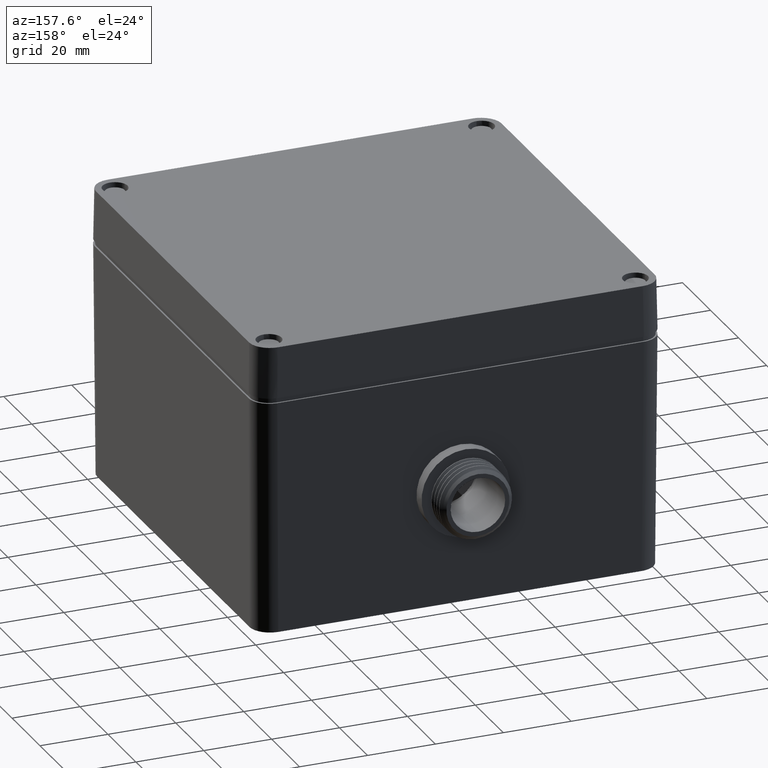
[diagram: clean part render]
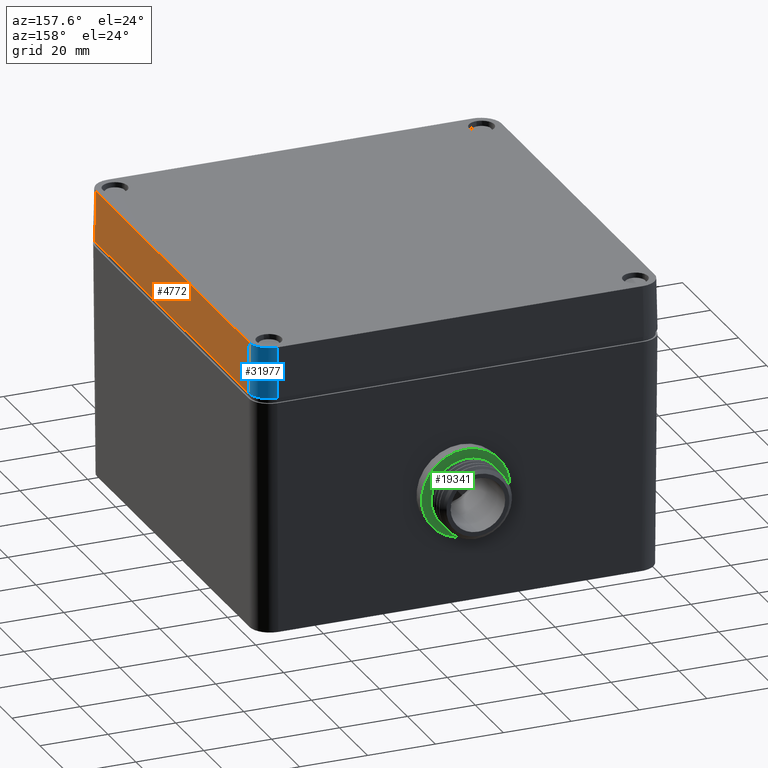
[diagram: same view with three faces highlighted in distinct colors, each labeled with its STEP entity id]
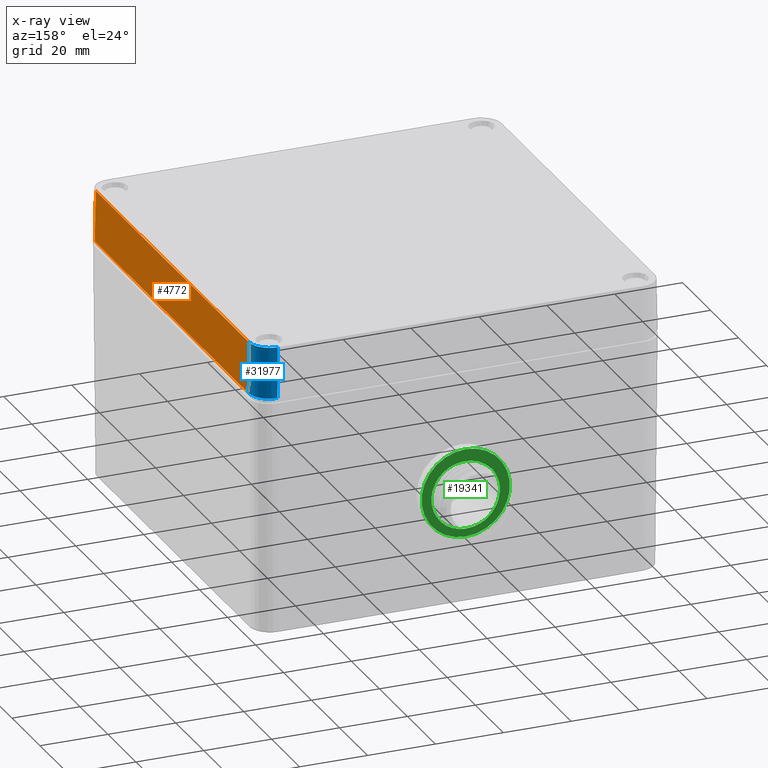
[diagram: x-ray of the same camera — body ghosted, the three highlighted faces saturated]
A machine part, auxiliary view with three faces highlighted in distinct colors.
The next image is the same camera in x-ray (body ghosted, the three faces saturated) — at least one of them is partly hidden behind the body in this view.
Their STEP definitions:

[orange] entity #4772 — the highlighted planar face has unit normal (0.9998, -0, 0.0175).
#57 = VERTEX_POINT ( 'NONE', #34297 ) ;
#141 = CARTESIAN_POINT ( 'NONE',  ( 2.355251277998998027, 2.158480694786887089, 0.3983624452186086407 ) ) ;
#1063 = CARTESIAN_POINT ( 'NONE',  ( 2.353181742042490754, -2.156368528094980697, 0.5169263135951186472 ) ) ;
#1912 = CARTESIAN_POINT ( 'NONE',  ( 2.362204724409393997, -2.165390308230775496, -6.043589989673345379E-16 ) ) ;
#2088 = CARTESIAN_POINT ( 'NONE',  ( 2.352841487991889302, 2.156192830683442363, 0.5364166382341853945 ) ) ;
#2254 = CARTESIAN_POINT ( 'NONE',  ( 2.353033918635437427, 2.156305534808684143, 0.5253942857674601674 ) ) ;
#2426 = CARTESIAN_POINT ( 'NONE',  ( 2.357050419131374586, -2.160235688940909338, 0.2952899516111358591 ) ) ;
#2706 = CARTESIAN_POINT ( 'NONE',  ( 2.362204724409397549, -2.598468369876929085, -5.463695987328527423E-16 ) ) ;
#2771 = CARTESIAN_POINT ( 'NONE',  ( 2.352564339387673620, 2.156108989803171117, 0.5522816826365337661 ) ) ;
#2864 = ORIENTED_EDGE ( 'NONE', *, *, #19145, .T. ) ;
#3635 = EDGE_CURVE ( 'NONE', #57, #6477, #9362, .T. ) ;
#3661 = CARTESIAN_POINT ( 'NONE',  ( 2.359383643705834643, 2.162569227527201043, 0.1616196052651092119 ) ) ;
#3708 = CARTESIAN_POINT ( 'NONE',  ( 2.353051709898592136, -2.156295069092335481, 0.5243758501298152463 ) ) ;
#4239 = CARTESIAN_POINT ( 'NONE',  ( 2.362204724409405543, 2.165390308230775496, -3.750340947889106375E-16 ) ) ;
#4772 = ADVANCED_FACE ( 'NONE', ( #5075 ), #12462, .T. ) ;
#4884 = CARTESIAN_POINT ( 'NONE',  ( 2.353180967361492293, 2.156409278470588831, 0.5169704762042724999 ) ) ;
#5075 = FACE_OUTER_BOUND ( 'NONE', #20816, .T. ) ;
#5229 = CARTESIAN_POINT ( 'NONE',  ( 2.352334635223743753, 2.156097020427234057, 0.5654187720685159846 ) ) ;
#6477 = VERTEX_POINT ( 'NONE', #34365 ) ;
#7011 = CARTESIAN_POINT ( 'NONE',  ( 2.352557804642128936, -2.156127391509974789, 0.5526716633218149433 ) ) ;
#7025 = CARTESIAN_POINT ( 'NONE',  ( 2.350865797016137737, -2.598468369876929085, 0.6496067152937756717 ) ) ;
#7054 = VECTOR ( 'NONE', #32856, 39.37007874015748143 ) ;
#7180 = CARTESIAN_POINT ( 'NONE',  ( 2.357016010137087392, -2.160202791623577312, 0.2972612415736117786 ) ) ;
#7506 = CARTESIAN_POINT ( 'NONE',  ( 2.352576141529553411, 2.156110948648593428, 0.5516063790416798618 ) ) ;
#7508 = CARTESIAN_POINT ( 'NONE',  ( 2.357738676050488813, -2.160893545960031137, 0.2558597391230127416 ) ) ;
#7804 = EDGE_CURVE ( 'NONE', #6477, #16788, #9403, .T. ) ;
#7859 = CARTESIAN_POINT ( 'NONE',  ( 2.354514351323819810, 2.157728896057717893, 0.4405810773966952754 ) ) ;
#7861 = CARTESIAN_POINT ( 'NONE',  ( 2.354439362616060016, -2.157619672768677166, 0.4448772791892376954 ) ) ;
#8032 = CARTESIAN_POINT ( 'NONE',  ( 2.353223411596077064, 2.156441946459593417, 0.5145389348610035496 ) ) ;
#8037 = ORIENTED_EDGE ( 'NONE', *, *, #22604, .T. ) ;
#8212 = CARTESIAN_POINT ( 'NONE',  ( 2.355554434297991939, 2.158780559679268851, 0.3809946661121992317 ) ) ;
#8742 = CARTESIAN_POINT ( 'NONE',  ( 2.355661275333182925, 2.158885724765175151, 0.3748737633946719883 ) ) ;
#8923 = CARTESIAN_POINT ( 'NONE',  ( 2.355661795932999514, 2.158886236603755560, 0.3748439383335794850 ) ) ;
#8960 = CARTESIAN_POINT ( 'NONE',  ( 2.353167137115640184, -2.156359382779720502, 0.5177630292939875423 ) ) ;
#9362 = LINE ( 'NONE', #9530, #7054 ) ;
#9403 = B_SPLINE_CURVE_WITH_KNOTS ( 'NONE', 3,
 ( #13300, #26789, #5229, #23825, #15755, #2771, #13127, #20842, #21539, #26273, #7506, #23993, #2088, #2254, #10495, #4884, #18917, #10671, #8032, #31526, #12967, #23657, #18730, #21187, #31876, #18199, #13475, #7859, #10160, #21367, #18553, #16272, #15922, #10324, #24169, #141, #21012, #8212, #10845, #32237, #29603, #12793, #31700, #23486, #8923, #8742, #29778, #3661, #11378 ),
 .UNSPECIFIED., .F., .F.,
 ( 4, 1, 1, 1, 1, 1, 1, 2, 2, 1, 1, 1, 1, 1, 1, 2, 2, 1, 1, 1, 1, 1, 1, 1, 1, 2, 2, 1, 1, 1, 1, 1, 1, 1, 1, 1, 2, 2, 4 ),
 ( 0.000000000000000000, 0.06249999999999440725, 0.09374999999999163169, 0.1093749999999907990, 0.1171874999999896333, 0.1210937499999891337, 0.1230468749999901884, 0.1240234374999905909, 0.1249999999999910072, 0.1875000000000039135, 0.2187500000000104083, 0.2343750000000132949, 0.2421875000000144051, 0.2460937500000150158, 0.2480468750000156264, 0.2490234375000159595, 0.2500000000000163203, 0.3750000000001817435, 0.4375000000002648437, 0.4687500000003060885, 0.4843750000003267386, 0.4921875000003371192, 0.4960937500003424483, 0.4980468750003451683, 0.4990234375003465561, 0.4995117187503470557, 0.5000000000003474998, 0.6250000000002307043, 0.6875000000001719735, 0.7187500000001425526, 0.7343750000001277867, 0.7421875000001204592, 0.7460937500001167955, 0.7480468750001149081, 0.7490234375001142419, 0.7495117187501142419, 0.7497558593751142419, 0.7500000000001141309, 1.000000000000000000 ),
 .UNSPECIFIED. ) ;
#9530 = CARTESIAN_POINT ( 'NONE',  ( 2.351896615199823071, 2.869518138128106521, 0.5905511811023621549 ) ) ;
#9647 = CARTESIAN_POINT ( 'NONE',  ( 2.352182386997454522, -2.156091088310620574, 0.5741793257807199513 ) ) ;
#9990 = CARTESIAN_POINT ( 'NONE',  ( 2.354456524076193435, -2.157638988890552945, 0.4438940997966681068 ) ) ;
#10160 = CARTESIAN_POINT ( 'NONE',  ( 2.354533109404270519, 2.157748716654744214, 0.4395064200328482884 ) ) ;
#10162 = CARTESIAN_POINT ( 'NONE',  ( 2.354468835662260062, -2.157652860836984043, 0.4431887695032579177 ) ) ;
#10324 = CARTESIAN_POINT ( 'NONE',  ( 2.354670429741324789, 2.157893929226902152, 0.4316392838003073051 ) ) ;
#10327 = CARTESIAN_POINT ( 'NONE',  ( 2.354208203435512736, -2.157361981356422209, 0.4581203797733690575 ) ) ;
#10495 = CARTESIAN_POINT ( 'NONE',  ( 2.353131691073817588, 2.156372867195542220, 0.5197933694044224451 ) ) ;
#10671 = CARTESIAN_POINT ( 'NONE',  ( 2.353218095386801600, 2.156437787900137959, 0.5148434909862080744 ) ) ;
#10845 = CARTESIAN_POINT ( 'NONE',  ( 2.355608151059885635, 2.158833463577935152, 0.3779172427636353637 ) ) ;
#11378 = CARTESIAN_POINT ( 'NONE',  ( 2.362204724409405543, 2.165390308230775496, -3.750340947889106375E-16 ) ) ;
#12446 = CARTESIAN_POINT ( 'NONE',  ( 2.356516109372325030, -2.159722893460161330, 0.3259005372060093109 ) ) ;
#12462 = PLANE ( 'NONE',  #31375 ) ;
#12793 = CARTESIAN_POINT ( 'NONE',  ( 2.355655901048544276, 2.158880440368159181, 0.3751816551076463391 ) ) ;
#12795 = CARTESIAN_POINT ( 'NONE',  ( 2.354405299731831214, -2.157581404361896826, 0.4468287405197529649 ) ) ;
#12967 = CARTESIAN_POINT ( 'NONE',  ( 2.353229765356001035, 2.156446937510909656, 0.5141749388451839486 ) ) ;
#13127 = CARTESIAN_POINT ( 'NONE',  ( 2.352571659237783219, 2.156110126772861957, 0.5518628587716991607 ) ) ;
#13129 = CARTESIAN_POINT ( 'NONE',  ( 2.354465137310765233, -2.157648692431112014, 0.4434006479185552130 ) ) ;
#13300 = CARTESIAN_POINT ( 'NONE',  ( 2.351886483393653915, 2.156095034953082745, 0.5905513425487972645 ) ) ;
#13475 = CARTESIAN_POINT ( 'NONE',  ( 2.354477157395254761, 2.157689628252733360, 0.4427119303909025638 ) ) ;
#13935 = DIRECTION ( 'NONE',  ( 2.152468218526740061E-16, 1.000000000000000000, 3.757147251031159329E-18 ) ) ;
#14234 = CARTESIAN_POINT ( 'NONE',  ( 2.352902605824697346, -2.156229257804550326, 0.5329180168022832342 ) ) ;
#15753 = VECTOR ( 'NONE', #13935, 39.37007874015748143 ) ;
#15755 = CARTESIAN_POINT ( 'NONE',  ( 2.352546066085423160, 2.156106828673045595, 0.5533271462577052935 ) ) ;
#15757 = CARTESIAN_POINT ( 'NONE',  ( 2.354473338546434480, -2.157657937282482674, 0.4429307994417920891 ) ) ;
#15922 = CARTESIAN_POINT ( 'NONE',  ( 2.354551512181030315, 2.157768172388574879, 0.4384521178397006169 ) ) ;
#16272 = CARTESIAN_POINT ( 'NONE',  ( 2.354549273111976593, 2.157765804641561758, 0.4385803949879996111 ) ) ;
#16383 = LINE ( 'NONE', #2706, #15753 ) ;
#16788 = VERTEX_POINT ( 'NONE', #4239 ) ;
#17534 = CARTESIAN_POINT ( 'NONE',  ( 2.353544635548352471, -2.156658931080831287, 0.4961361585682559361 ) ) ;
#17871 = CARTESIAN_POINT ( 'NONE',  ( 2.357048267316778301, -2.160233632134313186, 0.2954132289867980043 ) ) ;
#18143 = VERTEX_POINT ( 'NONE', #28480 ) ;
#18199 = CARTESIAN_POINT ( 'NONE',  ( 2.354404058472061578, 2.157612586199036731, 0.4468997894454521669 ) ) ;
#18387 = DIRECTION ( 'NONE',  ( 0.9998476951563912696, -2.152796099800039693E-16, 0.01745240643728470514 ) ) ;
#18553 = CARTESIAN_POINT ( 'NONE',  ( 2.354546574205745202, 2.157762950902161858, 0.4387350163812573922 ) ) ;
#18730 = CARTESIAN_POINT ( 'NONE',  ( 2.353561128775060407, 2.156743095326159931, 0.4951912455461882079 ) ) ;
#18917 = CARTESIAN_POINT ( 'NONE',  ( 2.353205703105421431, 2.156428170378546394, 0.5155534208509883198 ) ) ;
#19145 = EDGE_CURVE ( 'NONE', #57, #18143, #21732, .T. ) ;
#19660 = CARTESIAN_POINT ( 'NONE',  ( 2.353176262039422983, -2.156365057749952019, 0.5172402627605985348 ) ) ;
#20675 = CARTESIAN_POINT ( 'NONE',  ( 2.357033360424705570, -2.160219381670218208, 0.2962672442616835489 ) ) ;
#20816 = EDGE_LOOP ( 'NONE', ( #23446, #2864, #8037, #28653 ) ) ;
#20842 = CARTESIAN_POINT ( 'NONE',  ( 2.352574864994385173, 2.156110709358915134, 0.5516794238262755501 ) ) ;
#21012 = CARTESIAN_POINT ( 'NONE',  ( 2.355449735668313060, 2.158677260239024953, 0.3869928326685826425 ) ) ;
#21014 = CARTESIAN_POINT ( 'NONE',  ( 2.359456665843516987, -2.162611645369159952, 0.1574361697983447383 ) ) ;
#21187 = CARTESIAN_POINT ( 'NONE',  ( 2.354001555577083682, 2.157192153452594852, 0.4699592296331518426 ) ) ;
#21367 = CARTESIAN_POINT ( 'NONE',  ( 2.354542528723462702, 2.157758673626891444, 0.4389667836342380225 ) ) ;
#21539 = CARTESIAN_POINT ( 'NONE',  ( 2.352576141571137480, 2.156110962060343805, 0.5516063753469284681 ) ) ;
#21732 = B_SPLINE_CURVE_WITH_KNOTS ( 'NONE', 3,
 ( #22818, #9647, #7011, #14234, #3708, #33490, #30869, #8960, #19660, #1063, #22472, #17534, #28232, #10327, #31878, #12795, #7861, #9990, #13129, #10162, #33824, #15757, #34333, #34001, #26105, #12446, #26450, #31702, #23829, #7180, #20675, #28412, #23488, #17871, #2426, #7508, #21014, #1912 ),
 .UNSPECIFIED., .F., .F.,
 ( 4, 1, 1, 1, 1, 1, 2, 2, 1, 1, 1, 1, 1, 1, 1, 1, 2, 2, 1, 1, 1, 1, 1, 1, 1, 1, 1, 2, 2, 4 ),
 ( 0.000000000000000000, 0.06250000000010176582, 0.09375000000015247525, 0.1093750000001780520, 0.1171875000001910416, 0.1210937500001975642, 0.1230468750002008255, 0.1250000000002040867, 0.1875000000003142486, 0.2187500000003694822, 0.2343750000003972100, 0.2421875000004112266, 0.2460937500004183320, 0.2480468750004218570, 0.2490234375004236611, 0.2495117187504244105, 0.2497558593754247991, 0.2500000000004251599, 0.3750000000004288236, 0.4375000000004308776, 0.4687500000004318768, 0.4843750000004324319, 0.4921875000004327094, 0.4960937500004328760, 0.4980468750004330425, 0.4990234375004330425, 0.4995117187504330425, 0.4997558593754329870, 0.5000000000004328760, 1.000000000000000000 ),
 .UNSPECIFIED. ) ;
#22472 = CARTESIAN_POINT ( 'NONE',  ( 2.353298592349863050, -2.156443472595600319, 0.5102319639692127762 ) ) ;
#22604 = EDGE_CURVE ( 'NONE', #18143, #16788, #16383, .T. ) ;
#22818 = CARTESIAN_POINT ( 'NONE',  ( 2.351886699065626196, -2.156089557629905507, 0.5905513568582165806 ) ) ;
#23446 = ORIENTED_EDGE ( 'NONE', *, *, #3635, .F. ) ;
#23486 = CARTESIAN_POINT ( 'NONE',  ( 2.355660812795158598, 2.158885269961818398, 0.3749002621074037367 ) ) ;
#23488 = CARTESIAN_POINT ( 'NONE',  ( 2.357045780790336220, -2.160231255290770758, 0.2955556819913152111 ) ) ;
#23657 = CARTESIAN_POINT ( 'NONE',  ( 2.353325043272579187, 2.156522052821251201, 0.5087166243083700579 ) ) ;
#23825 = CARTESIAN_POINT ( 'NONE',  ( 2.352494982403208645, 2.156102957644923546, 0.5562493370193707376 ) ) ;
#23829 = CARTESIAN_POINT ( 'NONE',  ( 2.356981442515810876, -2.160169726389882694, 0.2992416192702074262 ) ) ;
#23993 = CARTESIAN_POINT ( 'NONE',  ( 2.352681860946376435, 2.156133873966298964, 0.5455566880357163306 ) ) ;
#24169 = CARTESIAN_POINT ( 'NONE',  ( 2.354898121092157570, 2.158127697596036398, 0.4185947880689477318 ) ) ;
#26105 = CARTESIAN_POINT ( 'NONE',  ( 2.356026845332650943, -2.159248982322239829, 0.3539304552662723147 ) ) ;
#26273 = CARTESIAN_POINT ( 'NONE',  ( 2.352576970996164363, 2.156111131199450970, 0.5515589133600939942 ) ) ;
#26450 = CARTESIAN_POINT ( 'NONE',  ( 2.356777759499029123, -2.159974551056111913, 0.3109106114864734760 ) ) ;
#26789 = CARTESIAN_POINT ( 'NONE',  ( 2.352097314289117502, 2.156095025280485800, 0.5789783770737546575 ) ) ;
#28232 = CARTESIAN_POINT ( 'NONE',  ( 2.353964824397906774, -2.157096583842994075, 0.4720635554995899485 ) ) ;
#28412 = CARTESIAN_POINT ( 'NONE',  ( 2.357042052187759751, -2.160227691050987886, 0.2957692934898116799 ) ) ;
#28480 = CARTESIAN_POINT ( 'NONE',  ( 2.362204724409393997, -2.165390308230775496, -6.043589989673345379E-16 ) ) ;
#28653 = ORIENTED_EDGE ( 'NONE', *, *, #7804, .F. ) ;
#29603 = CARTESIAN_POINT ( 'NONE',  ( 2.355649036888924464, 2.158873690205048934, 0.3755749014714165890 ) ) ;
#29778 = CARTESIAN_POINT ( 'NONE',  ( 2.357202997514264542, 2.160401525982384996, 0.2865488028694047618 ) ) ;
#30869 = CARTESIAN_POINT ( 'NONE',  ( 2.353153345727656109, -2.156350936744643398, 0.5185531373824070478 ) ) ;
#31375 = AXIS2_PLACEMENT_3D ( 'NONE', #7025, #18387, #31383 ) ;
#31383 = DIRECTION ( 'NONE',  ( 0.000000000000000000, -1.000000000000000000, -1.233523931233278138E-14 ) ) ;
#31526 = CARTESIAN_POINT ( 'NONE',  ( 2.353226956898263555, 2.156444727002450268, 0.5143358306733424312 ) ) ;
#31700 = CARTESIAN_POINT ( 'NONE',  ( 2.355659338469935804, 2.158883820348850069, 0.3749847259098614272 ) ) ;
#31702 = CARTESIAN_POINT ( 'NONE',  ( 2.356912839089098100, -2.160104055360835051, 0.3031719069543546974 ) ) ;
#31876 = CARTESIAN_POINT ( 'NONE',  ( 2.354263016396380248, 2.157464476316742541, 0.4549801198197013785 ) ) ;
#31878 = CARTESIAN_POINT ( 'NONE',  ( 2.354338214107524418, -2.157506322896225015, 0.4506720733622870956 ) ) ;
#32237 = CARTESIAN_POINT ( 'NONE',  ( 2.355635351302348024, 2.158860229071904335, 0.3763589460717559620 ) ) ;
#32856 = DIRECTION ( 'NONE',  ( 2.153124031018855159E-16, 1.000000000000000000, -3.526644069475725251E-33 ) ) ;
#33490 = CARTESIAN_POINT ( 'NONE',  ( 2.353120437806193177, -2.156331694271353516, 0.5204384309404055386 ) ) ;
#33824 = CARTESIAN_POINT ( 'NONE',  ( 2.354471302777759067, -2.157655641939930202, 0.4430474285510680454 ) ) ;
#34001 = CARTESIAN_POINT ( 'NONE',  ( 2.355184462108232957, -2.158418776262306160, 0.4021905578715630480 ) ) ;
#34297 = CARTESIAN_POINT ( 'NONE',  ( 2.351886699065626196, -2.156089557629905507, 0.5905513568582165806 ) ) ;
#34333 = CARTESIAN_POINT ( 'NONE',  ( 2.354695810524328969, -2.157908798866785549, 0.4301853883642668408 ) ) ;
#34365 = CARTESIAN_POINT ( 'NONE',  ( 2.351886483393653915, 2.156095034953082745, 0.5905513425487972645 ) ) ;

[blue] entity #31977 — the highlighted cylindrical surface (edge-blend (fillet) strip) has radius 6 mm, axis along (0.0174, 0.0174, -0.9997).
#141 = CARTESIAN_POINT ( 'NONE',  ( 2.355251277998998027, 2.158480694786887089, 0.3983624452186086407 ) ) ;
#292 = CARTESIAN_POINT ( 'NONE',  ( 2.119855186080484177, 2.395311159022102565, 0.3588439317335354040 ) ) ;
#1171 = CARTESIAN_POINT ( 'NONE',  ( 2.246863081244903970, 2.351522822357774878, 0.5905511811023621549 ) ) ;
#1335 = CARTESIAN_POINT ( 'NONE',  ( 2.228351043594492431, 2.362949785952562998, 0.5905511811023624880 ) ) ;
#1421 = DIRECTION ( 'NONE',  ( 0.01744974916068600321, 0.01744974916069065227, -0.9996954598818872384 ) ) ;
#1545 = CARTESIAN_POINT ( 'NONE',  ( 2.302959778011821612, 2.321887960416595398, 9.157749770981815499E-07 ) ) ;
#2088 = CARTESIAN_POINT ( 'NONE',  ( 2.352841487991889302, 2.156192830683442363, 0.5364166382341853945 ) ) ;
#2254 = CARTESIAN_POINT ( 'NONE',  ( 2.353033918635437427, 2.156305534808684143, 0.5253942857674601674 ) ) ;
#2771 = CARTESIAN_POINT ( 'NONE',  ( 2.352564339387673620, 2.156108989803171117, 0.5522816826365337661 ) ) ;
#2986 = VERTEX_POINT ( 'NONE', #5549 ) ;
#3452 = CARTESIAN_POINT ( 'NONE',  ( 2.119113486680350711, 2.394580136229956580, 0.4007241994467621859 ) ) ;
#3479 = DIRECTION ( 'NONE',  ( 0.01744974916068600668, 0.01744974916069065574, -0.9996954598818874604 ) ) ;
#3483 = EDGE_CURVE ( 'NONE', #5985, #21722, #16536, .T. ) ;
#3488 = ORIENTED_EDGE ( 'NONE', *, *, #33921, .T. ) ;
#3661 = CARTESIAN_POINT ( 'NONE',  ( 2.359383643705834643, 2.162569227527201043, 0.1616196052651092119 ) ) ;
#3976 = CARTESIAN_POINT ( 'NONE',  ( 2.206862132498665918, 2.372982398723869402, 0.5905511811023625990 ) ) ;
#4239 = CARTESIAN_POINT ( 'NONE',  ( 2.362204724409405543, 2.165390308230775496, -3.750340947889106375E-16 ) ) ;
#4313 = CARTESIAN_POINT ( 'NONE',  ( 2.339731935474506308, 2.230071687363348598, 0.5905511811023622659 ) ) ;
#4349 = CARTESIAN_POINT ( 'NONE',  ( 2.298075083005657326, 2.327242964827379801, 2.132091149195342065E-07 ) ) ;
#4475 = CARTESIAN_POINT ( 'NONE',  ( 2.304361479574840832, 2.298118838674477971, 0.5905511811023621549 ) ) ;
#4641 = CARTESIAN_POINT ( 'NONE',  ( 2.185350016181343058, 2.380996811256701484, 0.5905511811023624880 ) ) ;
#4884 = CARTESIAN_POINT ( 'NONE',  ( 2.353180967361492293, 2.156409278470588831, 0.5169704762042724999 ) ) ;
#5229 = CARTESIAN_POINT ( 'NONE',  ( 2.352334635223743753, 2.156097020427234057, 0.5654187720685159846 ) ) ;
#5549 = CARTESIAN_POINT ( 'NONE',  ( 2.118099106770212625, 2.393651773139255923, 0.4539100852924197183 ) ) ;
#5914 = CARTESIAN_POINT ( 'NONE',  ( 2.120893867864393822, 2.396398910957614259, 0.2965266650842295348 ) ) ;
#5985 = VERTEX_POINT ( 'NONE', #30192 ) ;
#6087 = CARTESIAN_POINT ( 'NONE',  ( 2.118433839291271603, 2.393949932489527921, 0.4368285475554740116 ) ) ;
#6212 = CARTESIAN_POINT ( 'NONE',  ( 2.116897156215414633, 2.392368317122764765, 0.5274392312320007603 ) ) ;
#6263 = CARTESIAN_POINT ( 'NONE',  ( 2.118156392368460317, 2.393701970690385927, 0.4510342695142448566 ) ) ;
#6477 = VERTEX_POINT ( 'NONE', #34365 ) ;
#6592 = VERTEX_POINT ( 'NONE', #21754 ) ;
#6606 = CARTESIAN_POINT ( 'NONE',  ( 2.347975239376884016, 2.197926325863374331, 0.5905511811023622659 ) ) ;
#6729 = CARTESIAN_POINT ( 'NONE',  ( 2.116724936463830531, 2.391265618516830838, 0.5905512067842342283 ) ) ;
#6774 = CARTESIAN_POINT ( 'NONE',  ( 2.351886483393653915, 2.156095034953082745, 0.5905513425487972645 ) ) ;
#6807 = CARTESIAN_POINT ( 'NONE',  ( 2.329439170863555564, 2.286338027223045355, 9.436831264941516849E-06 ) ) ;
#6937 = CARTESIAN_POINT ( 'NONE',  ( 2.321499900503223746, 2.271066125603070862, 0.5905511811023623769 ) ) ;
#7084 = CARTESIAN_POINT ( 'NONE',  ( 2.121661250998629900, 2.397211723430216601, 0.2499606697159716395 ) ) ;
#7091 = VECTOR ( 'NONE', #21734, 39.37007874015748854 ) ;
#7145 = CARTESIAN_POINT ( 'NONE',  ( 2.191979158619441481, 2.394277236397597264, 2.761179060757673793E-05 ) ) ;
#7188 = LINE ( 'NONE', #17215, #7608 ) ;
#7506 = CARTESIAN_POINT ( 'NONE',  ( 2.352576141529553411, 2.156110948648593428, 0.5516063790416798618 ) ) ;
#7608 = VECTOR ( 'NONE', #1421, 39.37007874015748854 ) ;
#7804 = EDGE_CURVE ( 'NONE', #6477, #16788, #9403, .T. ) ;
#7859 = CARTESIAN_POINT ( 'NONE',  ( 2.354514351323819810, 2.157728896057717893, 0.4405810773966952754 ) ) ;
#8026 = CYLINDRICAL_SURFACE ( 'NONE', #16470, 0.2362204724409566747 ) ;
#8032 = CARTESIAN_POINT ( 'NONE',  ( 2.353223411596077064, 2.156441946459593417, 0.5145389348610035496 ) ) ;
#8212 = CARTESIAN_POINT ( 'NONE',  ( 2.355554434297991939, 2.158780559679268851, 0.3809946661121992317 ) ) ;
#8742 = CARTESIAN_POINT ( 'NONE',  ( 2.355661275333182925, 2.158885724765175151, 0.3748737633946719883 ) ) ;
#8923 = CARTESIAN_POINT ( 'NONE',  ( 2.355661795932999514, 2.158886236603755560, 0.3748439383335794850 ) ) ;
#9230 = CARTESIAN_POINT ( 'NONE',  ( 2.163230050843039987, 2.386441142161118911, 0.5905511811023623769 ) ) ;
#9403 = B_SPLINE_CURVE_WITH_KNOTS ( 'NONE', 3,
 ( #13300, #26789, #5229, #23825, #15755, #2771, #13127, #20842, #21539, #26273, #7506, #23993, #2088, #2254, #10495, #4884, #18917, #10671, #8032, #31526, #12967, #23657, #18730, #21187, #31876, #18199, #13475, #7859, #10160, #21367, #18553, #16272, #15922, #10324, #24169, #141, #21012, #8212, #10845, #32237, #29603, #12793, #31700, #23486, #8923, #8742, #29778, #3661, #11378 ),
 .UNSPECIFIED., .F., .F.,
 ( 4, 1, 1, 1, 1, 1, 1, 2, 2, 1, 1, 1, 1, 1, 1, 2, 2, 1, 1, 1, 1, 1, 1, 1, 1, 2, 2, 1, 1, 1, 1, 1, 1, 1, 1, 1, 2, 2, 4 ),
 ( 0.000000000000000000, 0.06249999999999440725, 0.09374999999999163169, 0.1093749999999907990, 0.1171874999999896333, 0.1210937499999891337, 0.1230468749999901884, 0.1240234374999905909, 0.1249999999999910072, 0.1875000000000039135, 0.2187500000000104083, 0.2343750000000132949, 0.2421875000000144051, 0.2460937500000150158, 0.2480468750000156264, 0.2490234375000159595, 0.2500000000000163203, 0.3750000000001817435, 0.4375000000002648437, 0.4687500000003060885, 0.4843750000003267386, 0.4921875000003371192, 0.4960937500003424483, 0.4980468750003451683, 0.4990234375003465561, 0.4995117187503470557, 0.5000000000003474998, 0.6250000000002307043, 0.6875000000001719735, 0.7187500000001425526, 0.7343750000001277867, 0.7421875000001204592, 0.7460937500001167955, 0.7480468750001149081, 0.7490234375001142419, 0.7495117187501142419, 0.7497558593751142419, 0.7500000000001141309, 1.000000000000000000 ),
 .UNSPECIFIED. ) ;
#9574 = CARTESIAN_POINT ( 'NONE',  ( 2.160374012709179947, 2.387009036083208802, 0.5905511811023624880 ) ) ;
#9741 = CARTESIAN_POINT ( 'NONE',  ( 2.348893418381956533, 2.192669812454923317, 0.5905511811023623769 ) ) ;
#9920 = CARTESIAN_POINT ( 'NONE',  ( 2.336490233517698911, 2.239007331114728938, 0.5905511811023623769 ) ) ;
#10122 = CARTESIAN_POINT ( 'NONE',  ( 2.159775348779956694, 2.401574456638148281, 1.985162855728623695E-05 ) ) ;
#10160 = CARTESIAN_POINT ( 'NONE',  ( 2.354533109404270519, 2.157748716654744214, 0.4395064200328482884 ) ) ;
#10324 = CARTESIAN_POINT ( 'NONE',  ( 2.354670429741324789, 2.157893929226902152, 0.4316392838003073051 ) ) ;
#10495 = CARTESIAN_POINT ( 'NONE',  ( 2.353131691073817588, 2.156372867195542220, 0.5197933694044224451 ) ) ;
#10671 = CARTESIAN_POINT ( 'NONE',  ( 2.353218095386801600, 2.156437787900137959, 0.5148434909862080744 ) ) ;
#10845 = CARTESIAN_POINT ( 'NONE',  ( 2.355608151059885635, 2.158833463577935152, 0.3779172427636353637 ) ) ;
#11000 = CARTESIAN_POINT ( 'NONE',  ( 2.121107096434893702, 2.396625241902905490, 0.2835601739126799581 ) ) ;
#11042 = LINE ( 'NONE', #18928, #7091 ) ;
#11167 = CARTESIAN_POINT ( 'NONE',  ( 2.121531554841106448, 2.397072082988141783, 0.2579606652844291248 ) ) ;
#11378 = CARTESIAN_POINT ( 'NONE',  ( 2.362204724409405543, 2.165390308230775496, -3.750340947889106375E-16 ) ) ;
#11464 = ORIENTED_EDGE ( 'NONE', *, *, #28707, .F. ) ;
#11877 = CARTESIAN_POINT ( 'NONE',  ( 2.348126962992345135, 2.197093762540788919, 0.5905511811023621549 ) ) ;
#12040 = CARTESIAN_POINT ( 'NONE',  ( 2.348439646851958162, 2.195324735586697606, 0.5905511811023623769 ) ) ;
#12210 = CARTESIAN_POINT ( 'NONE',  ( 2.251904765639816564, 2.348063103188997136, 0.5905511811023623769 ) ) ;
#12543 = CARTESIAN_POINT ( 'NONE',  ( 2.351322360380298182, 2.174017598201221979, 0.5905511811023622659 ) ) ;
#12793 = CARTESIAN_POINT ( 'NONE',  ( 2.355655901048544276, 2.158880440368159181, 0.3751816551076463391 ) ) ;
#12967 = CARTESIAN_POINT ( 'NONE',  ( 2.353229765356001035, 2.156446937510909656, 0.5141749388451839486 ) ) ;
#13127 = CARTESIAN_POINT ( 'NONE',  ( 2.352571659237783219, 2.156110126772861957, 0.5518628587716991607 ) ) ;
#13300 = CARTESIAN_POINT ( 'NONE',  ( 2.351886483393653915, 2.156095034953082745, 0.5905513425487972645 ) ) ;
#13475 = CARTESIAN_POINT ( 'NONE',  ( 2.354477157395254761, 2.157689628252733360, 0.4427119303909025638 ) ) ;
#13503 = ORIENTED_EDGE ( 'NONE', *, *, #7804, .T. ) ;
#13585 = CARTESIAN_POINT ( 'NONE',  ( 2.117139044499307232, 2.392691351107334441, 0.5089326266506267737 ) ) ;
#13978 = CARTESIAN_POINT ( 'NONE',  ( 2.118099106770212625, 2.393651773139255923, 0.4539100852924197183 ) ) ;
#14291 = CARTESIAN_POINT ( 'NONE',  ( 2.116759120203588473, 2.391893431141763227, 0.5546454308625501373 ) ) ;
#14338 = CARTESIAN_POINT ( 'NONE',  ( 2.120995048774370062, 2.396506439323066839, 0.2903663691532676894 ) ) ;
#14509 = CARTESIAN_POINT ( 'NONE',  ( 2.118312864094326731, 2.393841883596200759, 0.4430186645085992247 ) ) ;
#14543 = ORIENTED_EDGE ( 'NONE', *, *, #28587, .F. ) ;
#14679 = CARTESIAN_POINT ( 'NONE',  ( 2.116724936463830531, 2.391265618516830838, 0.5905512067842342283 ) ) ;
#15380 = CARTESIAN_POINT ( 'NONE',  ( 2.295526730999655207, 2.329907485028966274, 7.869054960038681450E-09 ) ) ;
#15755 = CARTESIAN_POINT ( 'NONE',  ( 2.352546066085423160, 2.156106828673045595, 0.5533271462577052935 ) ) ;
#15922 = CARTESIAN_POINT ( 'NONE',  ( 2.354551512181030315, 2.157768172388574879, 0.4384521178397006169 ) ) ;
#16093 = CARTESIAN_POINT ( 'NONE',  ( 2.115650396999204652, 2.155020475739405583, 0.5899646898535118034 ) ) ;
#16272 = CARTESIAN_POINT ( 'NONE',  ( 2.354549273111976593, 2.157765804641561758, 0.4385803949879996111 ) ) ;
#16470 = AXIS2_PLACEMENT_3D ( 'NONE', #16093, #3479, #33101 ) ;
#16536 = B_SPLINE_CURVE_WITH_KNOTS ( 'NONE', 3,
 ( #6729, #14291, #6212, #33191 ),
 .UNSPECIFIED., .F., .F.,
 ( 4, 4 ),
 ( 0.000000000000000000, 1.000000000000000000 ),
 .UNSPECIFIED. ) ;
#16609 = CARTESIAN_POINT ( 'NONE',  ( 2.120923432204531611, 2.396430344954035618, 0.2947258126354850849 ) ) ;
#16788 = VERTEX_POINT ( 'NONE', #4239 ) ;
#16951 = CARTESIAN_POINT ( 'NONE',  ( 2.118347797780653963, 2.393872974607496040, 0.4412374616642441572 ) ) ;
#17215 = CARTESIAN_POINT ( 'NONE',  ( 2.115650396999204652, 2.391204970658248108, 0.5940873055473582243 ) ) ;
#17298 = CARTESIAN_POINT ( 'NONE',  ( 2.204952935834441075, 2.373770323213047817, 0.5905511811023624880 ) ) ;
#17466 = CARTESIAN_POINT ( 'NONE',  ( 2.238575897931506020, 2.356956420823626441, 0.5905511811023622659 ) ) ;
#17629 = CARTESIAN_POINT ( 'NONE',  ( 2.315455723975833102, 2.281190682788175828, 0.5905511811023622659 ) ) ;
#17797 = CARTESIAN_POINT ( 'NONE',  ( 2.327231805274956766, 2.260696409354784109, 0.5905511811023622659 ) ) ;
#17963 = CARTESIAN_POINT ( 'NONE',  ( 2.210503945911781898, 2.371423737872627058, 0.5905511811023624880 ) ) ;
#17998 = CARTESIAN_POINT ( 'NONE',  ( 2.362204724409405543, 2.165390308230775496, -3.750340947889106375E-16 ) ) ;
#18119 = VERTEX_POINT ( 'NONE', #7084 ) ;
#18158 = CARTESIAN_POINT ( 'NONE',  ( 2.312365530259126167, 2.310699694374758639, 3.187102753976657872E-06 ) ) ;
#18199 = CARTESIAN_POINT ( 'NONE',  ( 2.354404058472061578, 2.157612586199036731, 0.4468997894454521669 ) ) ;
#18553 = CARTESIAN_POINT ( 'NONE',  ( 2.354546574205745202, 2.157762950902161858, 0.4387350163812573922 ) ) ;
#18730 = CARTESIAN_POINT ( 'NONE',  ( 2.353561128775060407, 2.156743095326159931, 0.4951912455461882079 ) ) ;
#18917 = CARTESIAN_POINT ( 'NONE',  ( 2.353205703105421431, 2.156428170378546394, 0.5155534208509883198 ) ) ;
#18928 = CARTESIAN_POINT ( 'NONE',  ( 2.115650396999204652, 2.391204970658248108, 0.5940873055473582243 ) ) ;
#19268 = EDGE_LOOP ( 'NONE', ( #14543, #24499, #30827, #11464, #13503, #3488, #25636 ) ) ;
#19589 = CARTESIAN_POINT ( 'NONE',  ( 2.118288214353496013, 2.393819948471110237, 0.4442753269831984375 ) ) ;
#19756 = CARTESIAN_POINT ( 'NONE',  ( 2.121661250998629900, 2.397211723430216601, 0.2499606697159716395 ) ) ;
#19921 = CARTESIAN_POINT ( 'NONE',  ( 2.145367546151310201, 2.389840484362052209, 0.5905511811023623769 ) ) ;
#20096 = CARTESIAN_POINT ( 'NONE',  ( 2.276998943966595412, 2.327819564891187465, 0.5905511811023623769 ) ) ;
#20473 = CARTESIAN_POINT ( 'NONE',  ( 2.336837976023781405, 2.272999818490655688, 1.251086572459369779E-05 ) ) ;
#20602 = CARTESIAN_POINT ( 'NONE',  ( 2.268016269475173097, 2.335927834774654155, 0.5905511811023623769 ) ) ;
#20842 = CARTESIAN_POINT ( 'NONE',  ( 2.352574864994385173, 2.156110709358915134, 0.5516794238262755501 ) ) ;
#21012 = CARTESIAN_POINT ( 'NONE',  ( 2.355449735668313060, 2.158677260239024953, 0.3869928326685826425 ) ) ;
#21140 = B_SPLINE_CURVE_WITH_KNOTS ( 'NONE', 3,
 ( #6774, #22906, #12543, #25696, #9741, #12040, #11877, #6606, #28002, #31128, #4313, #23242, #9920, #30962, #25538, #17797, #6937, #28335, #17629, #4475, #25868, #20096, #20602, #30799, #12210, #31292, #1171, #17466, #1335, #22568, #17963, #3976, #17298, #28671, #4641, #25205, #33411, #9230, #28166, #9574, #19921, #30629, #14679 ),
 .UNSPECIFIED., .F., .F.,
 ( 4, 1, 1, 1, 2, 2, 1, 1, 2, 2, 1, 2, 2, 2, 1, 1, 2, 2, 1, 1, 2, 2, 1, 1, 1, 2, 2, 4 ),
 ( 0.000000000000000000, 0.06250000000002696454, 0.09375000000003924638, 0.1093750000000443812, 0.1171875000000457828, 0.1250000000000471845, 0.1875000000000460743, 0.2187500000000458522, 0.2343750000000461020, 0.2500000000000463518, 0.3125000000000489608, 0.3437500000000487943, 0.3750000000000485723, 0.5000000000000455191, 0.5625000000000439648, 0.5937500000000431877, 0.6093750000000428546, 0.6250000000000425215, 0.6875000000000404121, 0.7187500000000393019, 0.7343750000000391909, 0.7500000000000389688, 0.8125000000000315303, 0.8437500000000270894, 0.8593750000000248690, 0.8671875000000237588, 0.8750000000000226485, 1.000000000000000000 ),
 .UNSPECIFIED. ) ;
#21187 = CARTESIAN_POINT ( 'NONE',  ( 2.354001555577083682, 2.157192153452594852, 0.4699592296331518426 ) ) ;
#21367 = CARTESIAN_POINT ( 'NONE',  ( 2.354542528723462702, 2.157758673626891444, 0.4389667836342380225 ) ) ;
#21539 = CARTESIAN_POINT ( 'NONE',  ( 2.352576141571137480, 2.156110962060343805, 0.5516063753469284681 ) ) ;
#21722 = VERTEX_POINT ( 'NONE', #13585 ) ;
#21734 = DIRECTION ( 'NONE',  ( 0.01744974916068600321, 0.01744974916069065227, -0.9996954598818872384 ) ) ;
#21754 = CARTESIAN_POINT ( 'NONE',  ( 2.126020229490567015, 2.401574803149606474, -3.372144161330736112E-16 ) ) ;
#22029 = CARTESIAN_POINT ( 'NONE',  ( 2.120947276789874270, 2.396455691162511670, 0.2932737293243374288 ) ) ;
#22397 = CARTESIAN_POINT ( 'NONE',  ( 2.120915874498787268, 2.396422305506764161, 0.2951863922610744040 ) ) ;
#22568 = CARTESIAN_POINT ( 'NONE',  ( 2.215931636736341304, 2.369019877467005486, 0.5905511811023622659 ) ) ;
#22906 = CARTESIAN_POINT ( 'NONE',  ( 2.351856088708903059, 2.163281758820509104, 0.5905511811023622659 ) ) ;
#22937 = CARTESIAN_POINT ( 'NONE',  ( 2.316823454944038296, 2.304801363495307509, 4.741169228289415271E-06 ) ) ;
#23106 = CARTESIAN_POINT ( 'NONE',  ( 2.362204571393402119, 2.198501295481126938, 8.766281158123511675E-06 ) ) ;
#23242 = CARTESIAN_POINT ( 'NONE',  ( 2.337813413827365849, 2.235440509415202115, 0.5905511811023622659 ) ) ;
#23486 = CARTESIAN_POINT ( 'NONE',  ( 2.355660812795158598, 2.158885269961818398, 0.3749002621074037367 ) ) ;
#23657 = CARTESIAN_POINT ( 'NONE',  ( 2.353325043272579187, 2.156522052821251201, 0.5087166243083700579 ) ) ;
#23825 = CARTESIAN_POINT ( 'NONE',  ( 2.352494982403208645, 2.156102957644923546, 0.5562493370193707376 ) ) ;
#23993 = CARTESIAN_POINT ( 'NONE',  ( 2.352681860946376435, 2.156133873966298964, 0.5455566880357163306 ) ) ;
#24169 = CARTESIAN_POINT ( 'NONE',  ( 2.354898121092157570, 2.158127697596036398, 0.4185947880689477318 ) ) ;
#24499 = ORIENTED_EDGE ( 'NONE', *, *, #26613, .F. ) ;
#24510 = B_SPLINE_CURVE_WITH_KNOTS ( 'NONE', 3,
 ( #13978, #6263, #30114, #19589, #27477, #14509, #24662, #16951, #6087, #30294, #3452, #292, #27650, #5914, #22397, #16609, #22029, #14338, #11000, #27298, #11167, #19756 ),
 .UNSPECIFIED., .F., .F.,
 ( 4, 1, 2, 2, 1, 1, 1, 1, 1, 1, 2, 2, 1, 1, 1, 4 ),
 ( 0.2366586290621635058, 0.2474855448131104974, 0.2488389092819784931, 0.2501922737508470163, 0.2528990026885830078, 0.2583124605640540472, 0.2799662920659389820, 0.3232739550697095177, 0.4098892810772499784, 0.4965046070847899951, 0.4992113360225259866, 0.5019180649602620337, 0.5073315228357330176, 0.5181584385866750964, 0.5398122700885610303, 0.5831199330923320101 ),
 .UNSPECIFIED. ) ;
#24662 = CARTESIAN_POINT ( 'NONE',  ( 2.118324490982200992, 2.393852221149389781, 0.4424264264829141924 ) ) ;
#25205 = CARTESIAN_POINT ( 'NONE',  ( 2.172513288797039976, 2.384393648282056688, 0.5905511811023621549 ) ) ;
#25538 = CARTESIAN_POINT ( 'NONE',  ( 2.332165942702764116, 2.249920278861047063, 0.5905511811023623769 ) ) ;
#25636 = ORIENTED_EDGE ( 'NONE', *, *, #26913, .F. ) ;
#25696 = CARTESIAN_POINT ( 'NONE',  ( 2.349845438802668163, 2.186465312909646297, 0.5905511811023621549 ) ) ;
#25868 = CARTESIAN_POINT ( 'NONE',  ( 2.294170985343884972, 2.310644058359193842, 0.5905511811023622659 ) ) ;
#26071 = CARTESIAN_POINT ( 'NONE',  ( 2.126020229490567015, 2.401574803149606474, -3.372144161330736112E-16 ) ) ;
#26273 = CARTESIAN_POINT ( 'NONE',  ( 2.352576970996164363, 2.156111131199450970, 0.5515589133600939942 ) ) ;
#26613 = EDGE_CURVE ( 'NONE', #21722, #2986, #7188, .T. ) ;
#26789 = CARTESIAN_POINT ( 'NONE',  ( 2.352097314289117502, 2.156095025280485800, 0.5789783770737546575 ) ) ;
#26913 = EDGE_CURVE ( 'NONE', #18119, #6592, #11042, .T. ) ;
#27298 = CARTESIAN_POINT ( 'NONE',  ( 2.121333510542736445, 2.396864407883417591, 0.2698583640658055449 ) ) ;
#27477 = CARTESIAN_POINT ( 'NONE',  ( 2.118303214105669685, 2.393833303112940847, 0.4435102400651204646 ) ) ;
#27650 = CARTESIAN_POINT ( 'NONE',  ( 2.120531341646512136, 2.396013762765618171, 0.3185917902259791656 ) ) ;
#28002 = CARTESIAN_POINT ( 'NONE',  ( 2.346389308844732291, 2.206342054241180239, 0.5905511811023622659 ) ) ;
#28166 = CARTESIAN_POINT ( 'NONE',  ( 2.161363146568407778, 2.386816602192758374, 0.5905511811023624880 ) ) ;
#28335 = CARTESIAN_POINT ( 'NONE',  ( 2.317501349023417312, 2.277888955491828238, 0.5905511811023623769 ) ) ;
#28587 = EDGE_CURVE ( 'NONE', #2986, #18119, #24510, .T. ) ;
#28671 = CARTESIAN_POINT ( 'NONE',  ( 2.196114705614393259, 2.377294659379551423, 0.5905511811023623769 ) ) ;
#28698 = CARTESIAN_POINT ( 'NONE',  ( 2.305352041164484334, 2.319141546317506020, 1.413046124373997325E-06 ) ) ;
#28707 = EDGE_CURVE ( 'NONE', #6477, #5985, #21140, .T. ) ;
#29603 = CARTESIAN_POINT ( 'NONE',  ( 2.355649036888924464, 2.158873690205048934, 0.3755749014714165890 ) ) ;
#29778 = CARTESIAN_POINT ( 'NONE',  ( 2.357202997514264542, 2.160401525982384996, 0.2865488028694047618 ) ) ;
#30114 = CARTESIAN_POINT ( 'NONE',  ( 2.118221004176409572, 2.393760053855212622, 0.4477066872298535172 ) ) ;
#30192 = CARTESIAN_POINT ( 'NONE',  ( 2.116724936463830531, 2.391265618516830838, 0.5905512067842342283 ) ) ;
#30294 = CARTESIAN_POINT ( 'NONE',  ( 2.118641805434775538, 2.394138623420771772, 0.4260184513444275622 ) ) ;
#30629 = CARTESIAN_POINT ( 'NONE',  ( 2.131112098511838138, 2.391203826579557212, 0.5905511811023623769 ) ) ;
#30799 = CARTESIAN_POINT ( 'NONE',  ( 2.256842338413652005, 2.344548387052607819, 0.5905511811023623769 ) ) ;
#30827 = ORIENTED_EDGE ( 'NONE', *, *, #3483, .F. ) ;
#30962 = CARTESIAN_POINT ( 'NONE',  ( 2.335834519812643784, 2.240714384424348893, 0.5905511811023623769 ) ) ;
#31128 = CARTESIAN_POINT ( 'NONE',  ( 2.343744744262967306, 2.217414309391065874, 0.5905511811023624880 ) ) ;
#31162 = CARTESIAN_POINT ( 'NONE',  ( 2.273186239208556003, 2.352251243608896036, -2.112598078580522720E-08 ) ) ;
#31254 = B_SPLINE_CURVE_WITH_KNOTS ( 'NONE', 3,
 ( #17998, #23106, #33450, #20473, #6807, #22937, #18158, #28698, #1545, #4349, #15380, #31162, #31491, #7145, #10122, #26071 ),
 .UNSPECIFIED., .F., .F.,
 ( 4, 2, 2, 2, 2, 2, 2, 4 ),
 ( 0.000000000000000000, 0.2499999999999952816, 0.3749999999999925060, 0.4374999999999901190, 0.4687499999999889533, 0.4999999999999877875, 0.7499999999999937828, 1.000000000000000000 ),
 .UNSPECIFIED. ) ;
#31292 = CARTESIAN_POINT ( 'NONE',  ( 2.248579995973693624, 2.350366290331379115, 0.5905511811023623769 ) ) ;
#31491 = CARTESIAN_POINT ( 'NONE',  ( 2.248675772247801685, 2.369588665513746140, 1.705059261700228918E-05 ) ) ;
#31526 = CARTESIAN_POINT ( 'NONE',  ( 2.353226956898263555, 2.156444727002450268, 0.5143358306733424312 ) ) ;
#31700 = CARTESIAN_POINT ( 'NONE',  ( 2.355659338469935804, 2.158883820348850069, 0.3749847259098614272 ) ) ;
#31876 = CARTESIAN_POINT ( 'NONE',  ( 2.354263016396380248, 2.157464476316742541, 0.4549801198197013785 ) ) ;
#31977 = ADVANCED_FACE ( 'NONE', ( #32045 ), #8026, .T. ) ;
#32045 = FACE_OUTER_BOUND ( 'NONE', #19268, .T. ) ;
#32237 = CARTESIAN_POINT ( 'NONE',  ( 2.355635351302348024, 2.158860229071904335, 0.3763589460717559620 ) ) ;
#33101 = DIRECTION ( 'NONE',  ( 0.000000000000000000, 0.9998476951563910475, 0.01745240643729149485 ) ) ;
#33191 = CARTESIAN_POINT ( 'NONE',  ( 2.117139044499307232, 2.392691351107334441, 0.5089326266506267737 ) ) ;
#33411 = CARTESIAN_POINT ( 'NONE',  ( 2.166025444343455231, 2.385861481753575042, 0.5905511811023624880 ) ) ;
#33450 = CARTESIAN_POINT ( 'NONE',  ( 2.355175380629431547, 2.230409244107246725, 1.611795927974562603E-05 ) ) ;
#33921 = EDGE_CURVE ( 'NONE', #16788, #6592, #31254, .T. ) ;
#34365 = CARTESIAN_POINT ( 'NONE',  ( 2.351886483393653915, 2.156095034953082745, 0.5905513425487972645 ) ) ;

[green] entity #19341 — the highlighted planar face has unit normal (-0, 1, 0).
#442 = CARTESIAN_POINT ( 'NONE',  ( 0.07303631381330769057, 2.544894119088476625, -1.828016653324937124 ) ) ;
#494 = CARTESIAN_POINT ( 'NONE',  ( 0.2003186897778078956, 2.544894637849373087, -1.089323426730127942 ) ) ;
#786 = CARTESIAN_POINT ( 'NONE',  ( -0.1084646855429046014, 2.544894637849373975, -1.056697910039418487 ) ) ;
#812 = DIRECTION ( 'NONE',  ( 0.000000000000000000, 0.000000000000000000, 1.000000000000000000 ) ) ;
#1036 = CARTESIAN_POINT ( 'NONE',  ( -0.3696551416186736327, 2.544887855963697820, -1.583840450988135862 ) ) ;
#1111 = B_SPLINE_CURVE_WITH_KNOTS ( 'NONE', 3,
 ( #24364, #34518, #10687, #8048 ),
 .UNSPECIFIED., .F., .F.,
 ( 4, 4 ),
 ( 0.000000000000000000, 1.000000000000000000 ),
 .UNSPECIFIED. ) ;
#1183 = CARTESIAN_POINT ( 'NONE',  ( -0.2266095613591709856, 2.544893197563193432, -1.768033978785271021 ) ) ;
#1213 = CARTESIAN_POINT ( 'NONE',  ( -0.3514151850631924701, 2.544894639212448961, -1.623829590163608394 ) ) ;
#1274 = EDGE_LOOP ( 'NONE', ( #33492, #6924, #30436, #28519, #33139, #13303, #4616, #11262 ) ) ;
#1307 = CARTESIAN_POINT ( 'NONE',  ( -0.01815836708546650011, 2.544894637849373975, -1.041053615236203100 ) ) ;
#1383 = CARTESIAN_POINT ( 'NONE',  ( -0.3965754841041475576, 2.544894546278615888, -1.442868116073226847 ) ) ;
#1553 = CARTESIAN_POINT ( 'NONE',  ( -0.3965877381502297405, 2.544894614541627131, -1.440311210251807639 ) ) ;
#1717 = CARTESIAN_POINT ( 'NONE',  ( -0.3513656472583298607, 2.544894609044054956, -1.255816391555155453 ) ) ;
#2250 = CARTESIAN_POINT ( 'NONE',  ( 0.1303705102345447120, 2.544894637849373975, -1.812259015253611105 ) ) ;
#2948 = CARTESIAN_POINT ( 'NONE',  ( 0.04232638785828417294, 2.544923427501948776, -1.043094817546588615 ) ) ;
#3480 = CARTESIAN_POINT ( 'NONE',  ( 0.1353615263127741775, 2.544894637849373975, -1.057663433612870296 ) ) ;
#3597 = CARTESIAN_POINT ( 'NONE',  ( 0.03940366442790441126, 2.544892686359578882, -1.042876304634565043 ) ) ;
#3624 = AXIS2_PLACEMENT_3D ( 'NONE', #25095, #25267, #16675 ) ;
#3848 = CARTESIAN_POINT ( 'NONE',  ( -0.2947688823705421624, 2.544894641060813090, -1.175540041304230066 ) ) ;
#4020 = CARTESIAN_POINT ( 'NONE',  ( -0.3963828370140569657, 2.544893876532366761, -1.452230571031701833 ) ) ;
#4132 = CARTESIAN_POINT ( 'NONE',  ( -1.039165876517742016E-08, 2.544894637849373975, -1.834414023602094490 ) ) ;
#4184 = CARTESIAN_POINT ( 'NONE',  ( -0.3883363107958570093, 2.544882249611266634, -1.522247232711830156 ) ) ;
#4357 = CARTESIAN_POINT ( 'NONE',  ( -0.3965885593452008195, 2.544894631975231913, -1.439028111481504446 ) ) ;
#4616 = ORIENTED_EDGE ( 'NONE', *, *, #25427, .T. ) ;
#4833 = CARTESIAN_POINT ( 'NONE',  ( 0.04232638785828417294, 2.544923427501948776, -1.043094817546588615 ) ) ;
#4959 = EDGE_CURVE ( 'NONE', #9580, #5448, #1111, .T. ) ;
#5032 = CARTESIAN_POINT ( 'NONE',  ( -0.2441648337823308368, 2.544894567154214027, -1.128103250190254814 ) ) ;
#5380 = B_SPLINE_CURVE_WITH_KNOTS ( 'NONE', 3,
 ( #13348, #31924, #23361, #7906 ),
 .UNSPECIFIED., .F., .F.,
 ( 4, 4 ),
 ( 0.000000000000000000, 1.000000000000000000 ),
 .UNSPECIFIED. ) ;
#5411 = CARTESIAN_POINT ( 'NONE',  ( 0.3687399356209889456, 2.544894637849372643, -1.579831614024440167 ) ) ;
#5419 = FACE_BOUND ( 'NONE', #1274, .T. ) ;
#5427 = VERTEX_POINT ( 'NONE', #12387 ) ;
#5448 = VERTEX_POINT ( 'NONE', #17475 ) ;
#5882 = CARTESIAN_POINT ( 'NONE',  ( -0.2208099894077704684, 2.544897107434389572, -1.113024196922925313 ) ) ;
#5937 = CARTESIAN_POINT ( 'NONE',  ( 0.3734435848166485772, 2.544894637849374419, -1.291318995592421803 ) ) ;
#5945 = CARTESIAN_POINT ( 'NONE',  ( -1.039165618076677287E-08, 2.544894637849373975, -1.414222841370940786 ) ) ;
#6111 = CARTESIAN_POINT ( 'NONE',  ( 0.3092429362503603674, 2.544894637849373975, -1.178963295920407717 ) ) ;
#6308 = CARTESIAN_POINT ( 'NONE',  ( -0.3714680429032991005, 2.544892126691542966, -1.299834135041342709 ) ) ;
#6445 = CARTESIAN_POINT ( 'NONE',  ( -0.1558313644781171847, 2.544894637849373975, -1.804950694391537658 ) ) ;
#6476 = CARTESIAN_POINT ( 'NONE',  ( -0.3501578273346054315, 2.544894637888790889, -1.253557537530765043 ) ) ;
#6647 = CARTESIAN_POINT ( 'NONE',  ( -0.2733064367273882467, 2.544901590142372161, -1.730671013935195734 ) ) ;
#6816 = CARTESIAN_POINT ( 'NONE',  ( -0.3953356277314582501, 2.544903597228822534, -1.405765953513990363 ) ) ;
#6875 = EDGE_CURVE ( 'NONE', #14707, #9580, #28277, .T. ) ;
#6924 = ORIENTED_EDGE ( 'NONE', *, *, #12171, .T. ) ;
#6981 = CARTESIAN_POINT ( 'NONE',  ( -0.3965091680430376520, 2.544894284960472319, -1.447944488630289683 ) ) ;
#7012 = CARTESIAN_POINT ( 'NONE',  ( -0.2262171218585252164, 2.544885915971728529, -1.768289532284915255 ) ) ;
#7102 = CARTESIAN_POINT ( 'NONE',  ( 0.02443705250567783371, 2.544894637849373975, -1.834414023602095822 ) ) ;
#7676 = CARTESIAN_POINT ( 'NONE',  ( 0.3844997981374173035, 2.544894637849373975, -1.534743767500045486 ) ) ;
#7906 = CARTESIAN_POINT ( 'NONE',  ( -0.2210256700834322963, 2.544892428216956493, -1.113182278525824964 ) ) ;
#8048 = CARTESIAN_POINT ( 'NONE',  ( 0.03940366442790441126, 2.544892686359578882, -1.042876304634565043 ) ) ;
#8101 = VERTEX_POINT ( 'NONE', #32892 ) ;
#8234 = VERTEX_POINT ( 'NONE', #14826 ) ;
#8377 = CARTESIAN_POINT ( 'NONE',  ( 0.2157818393133382195, 2.544894637849374419, -1.098036684354374515 ) ) ;
#8730 = CARTESIAN_POINT ( 'NONE',  ( -1.039165876517742016E-08, 2.544894637849373975, -1.834414023602094490 ) ) ;
#8737 = CARTESIAN_POINT ( 'NONE',  ( 0.3236544493227814789, 2.544894637849374419, -1.197467481110759735 ) ) ;
#9034 = CARTESIAN_POINT ( 'NONE',  ( -0.08624888544852458983, 2.544894637849373975, -1.050837855782848163 ) ) ;
#9107 = CARTESIAN_POINT ( 'NONE',  ( -0.2983607300277646424, 2.544894830658376961, -1.179506973904247635 ) ) ;
#9201 = CARTESIAN_POINT ( 'NONE',  ( -0.1247718057447823464, 2.544894637849374419, -1.061912212691194846 ) ) ;
#9279 = CARTESIAN_POINT ( 'NONE',  ( -0.3851810013093157625, 2.544900387674086772, -1.342096401135437933 ) ) ;
#9304 = EDGE_CURVE ( 'NONE', #33218, #31659, #27651, .T. ) ;
#9398 = CARTESIAN_POINT ( 'NONE',  ( 0.04878249390733329499, 2.544894637849373975, -1.832281566843042997 ) ) ;
#9443 = CARTESIAN_POINT ( 'NONE',  ( -0.3503603451959250159, 2.544894635737227961, -1.253934338173738228 ) ) ;
#9580 = VERTEX_POINT ( 'NONE', #4833 ) ;
#9619 = CARTESIAN_POINT ( 'NONE',  ( -0.2504296713675575603, 2.544895206298293022, -1.750843210832482733 ) ) ;
#9787 = CARTESIAN_POINT ( 'NONE',  ( -0.3178797916856965222, 2.544898021073732863, -1.203134914459026206 ) ) ;
#10293 = CARTESIAN_POINT ( 'NONE',  ( -0.2945494742979812286, 2.544894639000133463, -1.175300772263266902 ) ) ;
#10490 = CARTESIAN_POINT ( 'NONE',  ( 0.07303631381330769057, 2.544894119088476625, -1.828016653324937124 ) ) ;
#10660 = B_SPLINE_CURVE_WITH_KNOTS ( 'NONE', 3,
 ( #16462, #9619, #6647, #11921, #28383, #28204, #27699, #17337, #30505, #25584, #14549, #20136, #1213, #17174, #22944, #28042, #14887, #33623, #1036, #25410, #11751, #4184, #33457, #30837, #20481, #22612, #4020, #6981, #1383, #1553, #4357, #14722, #22786, #25244, #15054, #12252, #20307, #6816, #23114, #33285, #9279, #25073, #6308, #19970, #31000, #12090, #30675, #25738, #1717, #14382, #9443, #6476, #12419, #17509, #33794, #9787, #16997, #22441, #33118, #9107, #19799, #27878, #3848, #10293, #34470, #28706, #28882, #18524, #31677, #5032, #18008 ),
 .UNSPECIFIED., .F., .F.,
 ( 4, 2, 2, 2, 1, 1, 1, 1, 1, 2, 2, 2, 2, 2, 2, 2, 1, 1, 1, 1, 1, 2, 2, 2, 2, 2, 2, 2, 1, 1, 1, 1, 2, 2, 2, 2, 1, 1, 1, 1, 1, 2, 2, 2, 4 ),
 ( 0.000000000000000000, 0.1250000000004135858, 0.1875000000006203926, 0.2187500000007238654, 0.2343750000007755740, 0.2421875000008014700, 0.2460937500008143208, 0.2480468750008207601, 0.2490234375008235079, 0.2495117187508243961, 0.2500000000008252843, 0.3125000000008585355, 0.3750000000008917866, 0.4375000000009250933, 0.4687500000009416912, 0.4843750000009500734, 0.4921875000009541812, 0.4960937500009562906, 0.4980468750009573453, 0.4990234375009575118, 0.4995117187509575674, 0.4997558593759575674, 0.5000000000009575674, 0.5625000000008643086, 0.6250000000007708278, 0.6875000000006774581, 0.7187500000006307177, 0.7343750000006074030, 0.7421875000005955236, 0.7460937500005893064, 0.7480468750005858647, 0.7490234375005838663, 0.7495117187505828671, 0.7500000000005817569, 0.8125000000004635181, 0.8437500000004046763, 0.8593750000003754774, 0.8671875000003609335, 0.8710937500003534950, 0.8730468750003501643, 0.8740234375003483880, 0.8745117187503473888, 0.8750000000003465006, 0.9375000000001731948, 1.000000000000000000 ),
 .UNSPECIFIED. ) ;
#10687 = CARTESIAN_POINT ( 'NONE',  ( 0.04037790557136435032, 2.544894637849373975, -1.042949142271905494 ) ) ;
#11262 = ORIENTED_EDGE ( 'NONE', *, *, #22088, .F. ) ;
#11502 = CARTESIAN_POINT ( 'NONE',  ( -0.1406721505608321543, 2.544894637849373087, -1.068235757291013055 ) ) ;
#11528 = DIRECTION ( 'NONE',  ( 0.000000000000000000, 1.000000000000000000, 0.000000000000000000 ) ) ;
#11751 = CARTESIAN_POINT ( 'NONE',  ( -0.3840142000433510172, 2.544882124856913563, -1.539768656317631379 ) ) ;
#11921 = CARTESIAN_POINT ( 'NONE',  ( -0.3052182192867113342, 2.544900824086007152, -1.694588522054814250 ) ) ;
#12010 = CARTESIAN_POINT ( 'NONE',  ( -0.1824209126680061688, 2.544894637849373975, -1.087539384370193263 ) ) ;
#12090 = CARTESIAN_POINT ( 'NONE',  ( -0.3576190695175138767, 2.544893824617828759, -1.268124712900857709 ) ) ;
#12171 = EDGE_CURVE ( 'NONE', #27724, #27800, #23721, .T. ) ;
#12252 = CARTESIAN_POINT ( 'NONE',  ( -0.3965707661030226094, 2.544894637804265614, -1.433472276000431034 ) ) ;
#12387 = CARTESIAN_POINT ( 'NONE',  ( -0.2273995839392704554, 2.544907702157779728, -1.767530898388982141 ) ) ;
#12419 = CARTESIAN_POINT ( 'NONE',  ( -0.3500224786824696066, 2.544894638438189194, -1.253306336867787030 ) ) ;
#12447 = CARTESIAN_POINT ( 'NONE',  ( -0.1786157667823064510, 2.544894637849373975, -1.794574473194596287 ) ) ;
#12788 = CARTESIAN_POINT ( 'NONE',  ( 0.09645743270955260684, 2.544894637849373087, -1.822815574005131056 ) ) ;
#12981 = CARTESIAN_POINT ( 'NONE',  ( -0.2262171218585252164, 2.544885915971728529, -1.768289532284915255 ) ) ;
#13011 = EDGE_LOOP ( 'NONE', ( #15486, #20503 ) ) ;
#13303 = ORIENTED_EDGE ( 'NONE', *, *, #14861, .T. ) ;
#13348 = CARTESIAN_POINT ( 'NONE',  ( -0.2208099894077704684, 2.544897107434389572, -1.113024196922925313 ) ) ;
#14181 = CARTESIAN_POINT ( 'NONE',  ( 0.1898447731435621566, 2.544894637849373975, -1.083737312427889288 ) ) ;
#14363 = CARTESIAN_POINT ( 'NONE',  ( 0.1845933316910660926, 2.544894637849373087, -1.081088015631996413 ) ) ;
#14382 = CARTESIAN_POINT ( 'NONE',  ( -0.3506634156045558837, 2.544894630928518975, -1.254499351884813318 ) ) ;
#14549 = CARTESIAN_POINT ( 'NONE',  ( -0.3500653787328492639, 2.544894659416948368, -1.626414703187277988 ) ) ;
#14707 = VERTEX_POINT ( 'NONE', #442 ) ;
#14722 = CARTESIAN_POINT ( 'NONE',  ( -0.3965876334724862118, 2.544894636377463382, -1.438385404971197712 ) ) ;
#14826 = CARTESIAN_POINT ( 'NONE',  ( -0.2210256700834322963, 2.544892428216956493, -1.113182278525824964 ) ) ;
#14861 = EDGE_CURVE ( 'NONE', #5448, #8101, #34021, .T. ) ;
#14887 = CARTESIAN_POINT ( 'NONE',  ( -0.3556596629835875878, 2.544894637913317048, -1.615599726384220558 ) ) ;
#15054 = CARTESIAN_POINT ( 'NONE',  ( -0.3965858715743287854, 2.544894637849550278, -1.437758607046083936 ) ) ;
#15086 = CARTESIAN_POINT ( 'NONE',  ( -0.2050757034500699794, 2.544894637849374419, -1.781180714110490060 ) ) ;
#15486 = ORIENTED_EDGE ( 'NONE', *, *, #9304, .T. ) ;
#15916 = CARTESIAN_POINT ( 'NONE',  ( 0.1624556865304734588, 2.544894637849374419, -1.797570046844376046 ) ) ;
#16096 = CARTESIAN_POINT ( 'NONE',  ( 0.3979028025404656166, 2.544894637849373087, -1.441749131291166997 ) ) ;
#16104 = FACE_OUTER_BOUND ( 'NONE', #13011, .T. ) ;
#16462 = CARTESIAN_POINT ( 'NONE',  ( -0.2273995839392704554, 2.544907702157779728, -1.767530898388982141 ) ) ;
#16631 = CARTESIAN_POINT ( 'NONE',  ( 0.3773974923583455210, 2.544894637849374419, -1.302399444702781350 ) ) ;
#16675 = DIRECTION ( 'NONE',  ( 0.000000000000000000, 0.000000000000000000, 1.000000000000000000 ) ) ;
#16997 = CARTESIAN_POINT ( 'NONE',  ( -0.3131356373257992431, 2.544897409471755800, -1.197018130220850463 ) ) ;
#17143 = CARTESIAN_POINT ( 'NONE',  ( -0.06412930366636014623, 2.544894637849373975, -1.829518533414363768 ) ) ;
#17174 = CARTESIAN_POINT ( 'NONE',  ( -0.3516069328754197199, 2.544894638335319925, -1.623459109205095618 ) ) ;
#17313 = CARTESIAN_POINT ( 'NONE',  ( -0.07897827534260089266, 2.544894637849373975, -1.826952666104546097 ) ) ;
#17337 = CARTESIAN_POINT ( 'NONE',  ( -0.3412510424834021561, 2.544895332290954215, -1.642288122752181945 ) ) ;
#17475 = CARTESIAN_POINT ( 'NONE',  ( 0.03940366442790441126, 2.544892686359578882, -1.042876304634565043 ) ) ;
#17509 = CARTESIAN_POINT ( 'NONE',  ( -0.3412664532529599559, 2.544894638620967431, -1.237079875373884530 ) ) ;
#17535 = CARTESIAN_POINT ( 'NONE',  ( -0.1919094631946661189, 2.544894637849373975, -1.788040523680586968 ) ) ;
#18008 = CARTESIAN_POINT ( 'NONE',  ( -0.2210256700834322963, 2.544892428216956493, -1.113182278525824964 ) ) ;
#18524 = CARTESIAN_POINT ( 'NONE',  ( -0.2844490133865664738, 2.544898107395180187, -1.164213093693992285 ) ) ;
#18545 = CARTESIAN_POINT ( 'NONE',  ( 0.3592948357430549855, 2.544894637849373975, -1.601433844317065480 ) ) ;
#18721 = CIRCLE ( 'NONE', #3624, 0.5130000000000204396 ) ;
#18724 = CARTESIAN_POINT ( 'NONE',  ( 0.3928934489645010686, 2.544894637849374419, -1.500264342270638984 ) ) ;
#19341 = ADVANCED_FACE ( 'NONE', ( #5419, #16104 ), #32240, .T. ) ;
#19584 = CARTESIAN_POINT ( 'NONE',  ( -1.039165618076677287E-08, 2.544894637849373975, -1.414222841370940786 ) ) ;
#19729 = CARTESIAN_POINT ( 'NONE',  ( -0.1563400586579004048, 2.544894637849373975, -1.075027521192626123 ) ) ;
#19773 = CARTESIAN_POINT ( 'NONE',  ( -0.1082291155640421748, 2.544894637849373975, -1.820353880008253045 ) ) ;
#19799 = CARTESIAN_POINT ( 'NONE',  ( -0.2963064245116642237, 2.544894687855416837, -1.177226666957762236 ) ) ;
#19813 = AXIS2_PLACEMENT_3D ( 'NONE', #19584, #11528, #812 ) ;
#19932 = CARTESIAN_POINT ( 'NONE',  ( -0.2273995839392704554, 2.544907702157779728, -1.767530898388982141 ) ) ;
#19970 = CARTESIAN_POINT ( 'NONE',  ( -0.3643736344372298097, 2.544892492005062845, -1.282749715700323812 ) ) ;
#20136 = CARTESIAN_POINT ( 'NONE',  ( -0.3509666889758042418, 2.544894643289011604, -1.624692867251063433 ) ) ;
#20307 = CARTESIAN_POINT ( 'NONE',  ( -0.3965144810516919582, 2.544897288220076881, -1.426200725897812882 ) ) ;
#20481 = CARTESIAN_POINT ( 'NONE',  ( -0.3957009921376358763, 2.544891994134969693, -1.466250438393405853 ) ) ;
#20503 = ORIENTED_EDGE ( 'NONE', *, *, #32993, .T. ) ;
#20837 = CARTESIAN_POINT ( 'NONE',  ( 0.1936753227419769352, 2.544894637849373975, -1.781077507089515732 ) ) ;
#21357 = AXIS2_PLACEMENT_3D ( 'NONE', #5945, #26628, #21541 ) ;
#21362 = CARTESIAN_POINT ( 'NONE',  ( 0.3241428442616763883, 2.544894637849373087, -1.662527057248557094 ) ) ;
#21535 = CARTESIAN_POINT ( 'NONE',  ( 0.2765956852380100361, 2.544894637849373975, -1.144146288331638450 ) ) ;
#21541 = DIRECTION ( 'NONE',  ( 1.000000000000000000, 0.000000000000000000, 0.000000000000000000 ) ) ;
#21844 = B_SPLINE_CURVE_WITH_KNOTS ( 'NONE', 3,
 ( #25705, #1183, #30467, #19932 ),
 .UNSPECIFIED., .F., .F.,
 ( 4, 4 ),
 ( 0.000000000000000000, 1.000000000000000000 ),
 .UNSPECIFIED. ) ;
#22045 = CARTESIAN_POINT ( 'NONE',  ( -0.06912917097475597406, 2.544894637849373975, -1.828716120054615146 ) ) ;
#22088 = EDGE_CURVE ( 'NONE', #5427, #8234, #10660, .T. ) ;
#22441 = CARTESIAN_POINT ( 'NONE',  ( -0.3060313513153121723, 2.544896058815719897, -1.188369455850686762 ) ) ;
#22612 = CARTESIAN_POINT ( 'NONE',  ( -0.3960432493850007951, 2.544892885219729450, -1.460713736729295720 ) ) ;
#22710 = CARTESIAN_POINT ( 'NONE',  ( -0.2021721659839557372, 2.544894637849373087, -1.099370818735121214 ) ) ;
#22754 = CARTESIAN_POINT ( 'NONE',  ( -0.01984639160741020342, 2.544894637849373975, -1.834414023602095600 ) ) ;
#22786 = CARTESIAN_POINT ( 'NONE',  ( -0.3965869492087604198, 2.544894637324421893, -1.438109711838191807 ) ) ;
#22944 = CARTESIAN_POINT ( 'NONE',  ( -0.3517346612232229441, 2.544894637945623206, -1.623212009714742887 ) ) ;
#23114 = CARTESIAN_POINT ( 'NONE',  ( -0.3942079343862079921, 2.544906624152620811, -1.392592693085320965 ) ) ;
#23361 = CARTESIAN_POINT ( 'NONE',  ( -0.2209537765248783814, 2.544894637849373975, -1.113129584658191007 ) ) ;
#23606 = EDGE_CURVE ( 'NONE', #27724, #5427, #21844, .T. ) ;
#23721 = B_SPLINE_CURVE_WITH_KNOTS ( 'NONE', 3,
 ( #7012, #30706, #15086, #17535, #25773, #12447, #6445, #24681, #19773, #25386, #17313, #22045, #17143, #32733, #22754, #8730 ),
 .UNSPECIFIED., .F., .F.,
 ( 4, 1, 2, 2, 2, 1, 2, 2, 4 ),
 ( 0.000000000000000000, 0.1250000000000011657, 0.1875000000000011102, 0.2500000000000010547, 0.5000000000000015543, 0.6250000000000017764, 0.6875000000000015543, 0.7500000000000012212, 1.000000000000000000 ),
 .UNSPECIFIED. ) ;
#24164 = CARTESIAN_POINT ( 'NONE',  ( 0.3437638475566386353, 2.544894637849373975, -1.633094494166725807 ) ) ;
#24166 = CARTESIAN_POINT ( 'NONE',  ( -1.039165618076677287E-08, 2.544894637849373975, -0.9012228413709212349 ) ) ;
#24364 = CARTESIAN_POINT ( 'NONE',  ( 0.04232638785828417294, 2.544923427501948776, -1.043094817546588615 ) ) ;
#24519 = CARTESIAN_POINT ( 'NONE',  ( 0.3489854224200825694, 2.544894637849373975, -1.237021462448799403 ) ) ;
#24681 = CARTESIAN_POINT ( 'NONE',  ( -0.1370648937505525577, 2.544894637849373087, -1.811923299967445056 ) ) ;
#24811 = CARTESIAN_POINT ( 'NONE',  ( -0.09188638175047496304, 2.544894637849373087, -1.052223102019671064 ) ) ;
#24863 = CARTESIAN_POINT ( 'NONE',  ( 0.08976261190104298238, 2.544894637849374419, -1.045866611362887388 ) ) ;
#25073 = CARTESIAN_POINT ( 'NONE',  ( -0.3753833245600314839, 2.544893910806752757, -1.310805431026876411 ) ) ;
#25095 = CARTESIAN_POINT ( 'NONE',  ( -1.039165618076677287E-08, 2.544894637849373975, -1.414222841370940786 ) ) ;
#25244 = CARTESIAN_POINT ( 'NONE',  ( -0.3965864290331780895, 2.544894637745210630, -1.437925861471820443 ) ) ;
#25263 = CARTESIAN_POINT ( 'NONE',  ( -1.039165611794240369E-08, 2.544894637849373975, -1.927222841370960449 ) ) ;
#25267 = DIRECTION ( 'NONE',  ( 0.000000000000000000, 1.000000000000000000, 0.000000000000000000 ) ) ;
#25386 = CARTESIAN_POINT ( 'NONE',  ( -0.09369263731794959249, 2.544894637849374419, -1.824045800330224232 ) ) ;
#25410 = CARTESIAN_POINT ( 'NONE',  ( -0.3746734621837503054, 2.544885013013314712, -1.570561938656187095 ) ) ;
#25427 = EDGE_CURVE ( 'NONE', #8101, #8234, #5380, .T. ) ;
#25532 = CARTESIAN_POINT ( 'NONE',  ( 0.07303631381330769057, 2.544894119088476625, -1.828016653324937124 ) ) ;
#25584 = CARTESIAN_POINT ( 'NONE',  ( -0.3482456457719744769, 2.544894722419793087, -1.629839468198242658 ) ) ;
#25705 = CARTESIAN_POINT ( 'NONE',  ( -0.2262171218585252164, 2.544885915971728529, -1.768289532284915255 ) ) ;
#25738 = CARTESIAN_POINT ( 'NONE',  ( -0.3527504765659752461, 2.544894525815907915, -1.258445050056374859 ) ) ;
#25773 = CARTESIAN_POINT ( 'NONE',  ( -0.1830475154436372043, 2.544894637849373087, -1.792460238915871473 ) ) ;
#26628 = DIRECTION ( 'NONE',  ( -0.000000000000000000, 1.000000000000000000, 0.000000000000000000 ) ) ;
#26959 = CARTESIAN_POINT ( 'NONE',  ( 0.3598495204749678766, 2.544894637849374419, -1.258012217235588093 ) ) ;
#27444 = CARTESIAN_POINT ( 'NONE',  ( -0.04106921114738869977, 2.544894637849373975, -1.042872127312248764 ) ) ;
#27651 = CIRCLE ( 'NONE', #19813, 0.5130000000000204396 ) ;
#27677 = CARTESIAN_POINT ( 'NONE',  ( 0.2501284436520402332, 2.544894637849374419, -1.120706222007164410 ) ) ;
#27699 = CARTESIAN_POINT ( 'NONE',  ( -0.3345385781343676590, 2.544896213603631274, -1.653461595131511030 ) ) ;
#27724 = VERTEX_POINT ( 'NONE', #12981 ) ;
#27800 = VERTEX_POINT ( 'NONE', #34687 ) ;
#27878 = CARTESIAN_POINT ( 'NONE',  ( -0.2952810788320756608, 2.544894650576749129, -1.176100010929408857 ) ) ;
#27977 = CARTESIAN_POINT ( 'NONE',  ( 0.01640586739119625354, 2.544894637849373975, -1.040973294015672179 ) ) ;
#28042 = CARTESIAN_POINT ( 'NONE',  ( -0.3518325667483365726, 2.544894637848876595, -1.623022281157600943 ) ) ;
#28204 = CARTESIAN_POINT ( 'NONE',  ( -0.3298816520896898918, 2.544896988080745714, -1.660675038879464660 ) ) ;
#28277 = B_SPLINE_CURVE_WITH_KNOTS ( 'NONE', 3,
 ( #10490, #12788, #2250, #15916, #34162, #20837, #31522, #31871, #31696, #34326, #21362, #24164, #18545, #5411, #32046, #7676, #18724, #29422, #16096, #31360, #32398, #32569, #32232, #29953, #16631, #5937, #26959, #24519, #8737, #6111, #21535, #27677, #8377, #494, #14181, #14363, #3480, #24863, #2948 ),
 .UNSPECIFIED., .F., .F.,
 ( 4, 1, 2, 2, 2, 2, 1, 2, 2, 1, 1, 2, 2, 1, 2, 2, 2, 2, 1, 1, 2, 2, 4 ),
 ( 0.000000000000000000, 0.06249999999999797384, 0.09374999999999707179, 0.1249999999999961697, 0.1874999999999946709, 0.2499999999999931721, 0.3124999999999917288, 0.3437499999999913403, 0.3749999999999909517, 0.4374999999999901190, 0.4687499999999897304, 0.4843749999999895639, 0.4999999999999893419, 0.5624999999999906741, 0.5937499999999916733, 0.6249999999999925615, 0.6874999999999940048, 0.7499999999999954481, 0.8124999999999968914, 0.8437499999999975575, 0.8593749999999977796, 0.8749999999999980016, 1.000000000000000000 ),
 .UNSPECIFIED. ) ;
#28383 = CARTESIAN_POINT ( 'NONE',  ( -0.3154506951700330464, 2.544899306456080090, -1.681598078693558707 ) ) ;
#28519 = ORIENTED_EDGE ( 'NONE', *, *, #6875, .T. ) ;
#28706 = CARTESIAN_POINT ( 'NONE',  ( -0.2942798363301876163, 2.544894637849555163, -1.175007131534877347 ) ) ;
#28882 = CARTESIAN_POINT ( 'NONE',  ( -0.2913355995733613035, 2.544894637826160100, -1.171804445584544663 ) ) ;
#29422 = CARTESIAN_POINT ( 'NONE',  ( 0.3972199153974703689, 2.544894637849373975, -1.459399518704745713 ) ) ;
#29899 = CARTESIAN_POINT ( 'NONE',  ( -0.07502692298945749794, 2.544894637849373975, -1.048354525447186214 ) ) ;
#29953 = CARTESIAN_POINT ( 'NONE',  ( 0.3843169328040590416, 2.544894637849373975, -1.324924712025866480 ) ) ;
#30085 = CARTESIAN_POINT ( 'NONE',  ( 0.02790610271145076496, 2.544894637849374419, -1.041658377186432727 ) ) ;
#30412 = B_SPLINE_CURVE_WITH_KNOTS ( 'NONE', 3,
 ( #4132, #7102, #9398, #25532 ),
 .UNSPECIFIED., .F., .F.,
 ( 4, 4 ),
 ( 0.000000000000000000, 1.000000000000000000 ),
 .UNSPECIFIED. ) ;
#30431 = CARTESIAN_POINT ( 'NONE',  ( -0.1511819859080148210, 2.544894637849373975, -1.072697951901569358 ) ) ;
#30436 = ORIENTED_EDGE ( 'NONE', *, *, #34282, .T. ) ;
#30467 = CARTESIAN_POINT ( 'NONE',  ( -0.2270037262715607906, 2.544900459453675268, -1.767781124320372044 ) ) ;
#30505 = CARTESIAN_POINT ( 'NONE',  ( -0.3445390007743355243, 2.544894962302428620, -1.636613108505326375 ) ) ;
#30675 = CARTESIAN_POINT ( 'NONE',  ( -0.3554423732691490145, 2.544894226414959437, -1.263679750557420212 ) ) ;
#30706 = CARTESIAN_POINT ( 'NONE',  ( -0.2178618995920547086, 2.544894637849373975, -1.773630194388881032 ) ) ;
#30837 = CARTESIAN_POINT ( 'NONE',  ( -0.3943711688515970648, 2.544889110884025030, -1.482489559724372352 ) ) ;
#31000 = CARTESIAN_POINT ( 'NONE',  ( -0.3618054360151211069, 2.544893020269276107, -1.276950849806125055 ) ) ;
#31360 = CARTESIAN_POINT ( 'NONE',  ( 0.3980977689120513974, 2.544894637849374419, -1.429951785993309077 ) ) ;
#31522 = CARTESIAN_POINT ( 'NONE',  ( 0.2240920164233672629, 2.544894637849372643, -1.762156963515814301 ) ) ;
#31659 = VERTEX_POINT ( 'NONE', #25263 ) ;
#31677 = CARTESIAN_POINT ( 'NONE',  ( -0.2608938994212379181, 2.544897978159597507, -1.142379494658803507 ) ) ;
#31696 = CARTESIAN_POINT ( 'NONE',  ( 0.2781601519296254543, 2.544894637849373975, -1.716845051471438621 ) ) ;
#31871 = CARTESIAN_POINT ( 'NONE',  ( 0.2430167618396564255, 2.544894637849374419, -1.748049102820619538 ) ) ;
#31924 = CARTESIAN_POINT ( 'NONE',  ( -0.2208818829663245498, 2.544894637849373975, -1.113076890790557716 ) ) ;
#32046 = CARTESIAN_POINT ( 'NONE',  ( 0.3729826466254033690, 2.544894637849373087, -1.568858148463786018 ) ) ;
#32232 = CARTESIAN_POINT ( 'NONE',  ( 0.3931302715960859340, 2.544894637849373975, -1.359055171770942483 ) ) ;
#32240 = PLANE ( 'NONE',  #21357 ) ;
#32398 = CARTESIAN_POINT ( 'NONE',  ( 0.3980663359329059126, 2.544894637849373975, -1.424082685753461863 ) ) ;
#32569 = CARTESIAN_POINT ( 'NONE',  ( 0.3972461447584819672, 2.544894637849373975, -1.394213307797364187 ) ) ;
#32733 = CARTESIAN_POINT ( 'NONE',  ( -0.03958664548702139907, 2.544894637849374419, -1.833015312119887108 ) ) ;
#32892 = CARTESIAN_POINT ( 'NONE',  ( -0.2208099894077704684, 2.544897107434389572, -1.113024196922925313 ) ) ;
#32993 = EDGE_CURVE ( 'NONE', #31659, #33218, #18721, .T. ) ;
#33047 = CARTESIAN_POINT ( 'NONE',  ( -0.05813561440788336809, 2.544894637849373975, -1.045023048518102682 ) ) ;
#33118 = CARTESIAN_POINT ( 'NONE',  ( -0.3024821970427192253, 2.544895350164939174, -1.184176586515210516 ) ) ;
#33139 = ORIENTED_EDGE ( 'NONE', *, *, #4959, .T. ) ;
#33210 = CARTESIAN_POINT ( 'NONE',  ( -0.006599950456914432766, 2.544894637849372643, -1.040668816228893068 ) ) ;
#33218 = VERTEX_POINT ( 'NONE', #24166 ) ;
#33285 = CARTESIAN_POINT ( 'NONE',  ( -0.3891329589839629399, 2.544905166867570401, -1.360765442960193417 ) ) ;
#33457 = CARTESIAN_POINT ( 'NONE',  ( -0.3930811356824698288, 2.544886940794161223, -1.492819957227312200 ) ) ;
#33492 = ORIENTED_EDGE ( 'NONE', *, *, #23606, .F. ) ;
#33623 = CARTESIAN_POINT ( 'NONE',  ( -0.3601487691800367985, 2.544892674701983548, -1.606356840023656529 ) ) ;
#33794 = CARTESIAN_POINT ( 'NONE',  ( -0.3319979699818868535, 2.544897614734879632, -1.222604542051480836 ) ) ;
#34021 = B_SPLINE_CURVE_WITH_KNOTS ( 'NONE', 3,
 ( #3597, #30085, #27977, #33210, #1307, #27444, #33047, #29899, #9034, #24811, #786, #9201, #11502, #30431, #19729, #12010, #22710, #5882 ),
 .UNSPECIFIED., .F., .F.,
 ( 4, 2, 2, 1, 2, 2, 1, 2, 2, 4 ),
 ( 0.000000000000000000, 0.1250000000000002498, 0.2500000000000004996, 0.3750000000000007772, 0.4375000000000007772, 0.5000000000000006661, 0.6250000000000001110, 0.6874999999999997780, 0.7499999999999994449, 1.000000000000000000 ),
 .UNSPECIFIED. ) ;
#34162 = CARTESIAN_POINT ( 'NONE',  ( 0.1834396037879675034, 2.544894637849373087, -1.786859087980948058 ) ) ;
#34282 = EDGE_CURVE ( 'NONE', #27800, #14707, #30412, .T. ) ;
#34326 = CARTESIAN_POINT ( 'NONE',  ( 0.2943459375496861319, 2.544894637849374419, -1.699789953119595909 ) ) ;
#34470 = CARTESIAN_POINT ( 'NONE',  ( -0.2944032258049441575, 2.544894638081596216, -1.175141418921280989 ) ) ;
#34518 = CARTESIAN_POINT ( 'NONE',  ( 0.04135214671482424081, 2.544894637849373975, -1.043021979909247277 ) ) ;
#34687 = CARTESIAN_POINT ( 'NONE',  ( -1.039165876517742016E-08, 2.544894637849373975, -1.834414023602094490 ) ) ;